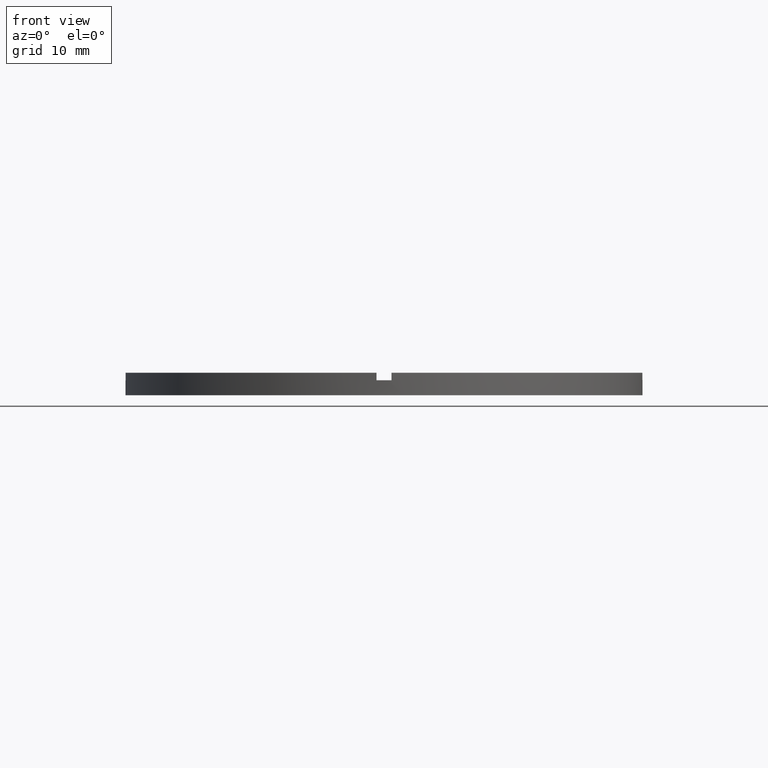
[diagram: clean part render]
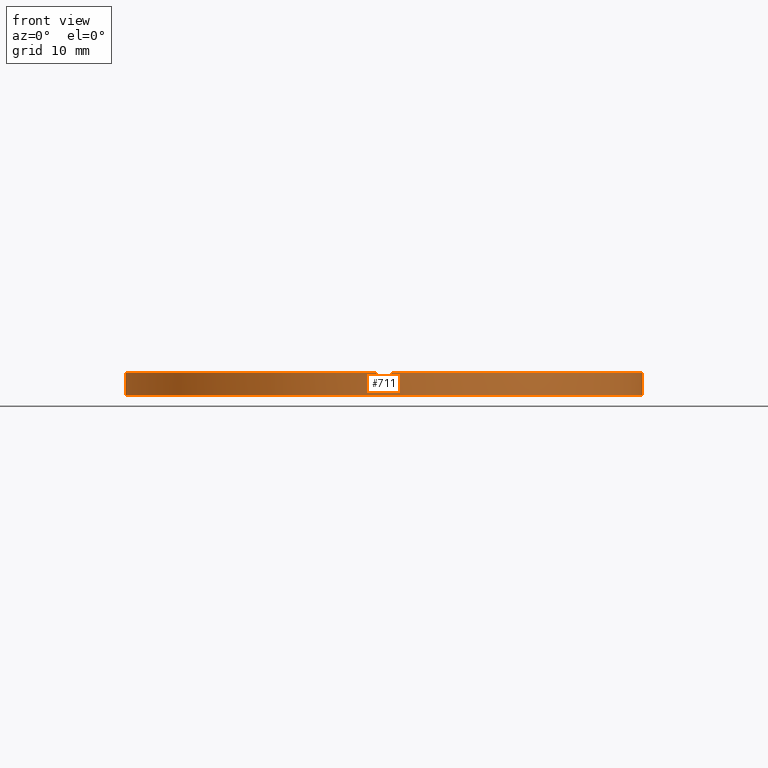
[diagram: same view with one face highlighted and labeled with its STEP entity id]
A machine part, front view. The second image highlights one B-rep face of the part: STEP entity #711.
In plain terms, the highlighted cylindrical surface (partial cylindrical patch) has radius 34.5 mm, axis along (-0, -0, -1).
Its self-contained STEP definition (entity closure, byte-faithful):
#5 = CARTESIAN_POINT ( 'NONE',  ( -1.000000000000160760, -34.48550420104075442, 3.000000000000000000 ) ) ;
#9 = LINE ( 'NONE', #189, #264 ) ;
#10 = DIRECTION ( 'NONE',  ( 0.000000000000000000, 0.000000000000000000, 1.000000000000000000 ) ) ;
#12 = AXIS2_PLACEMENT_3D ( 'NONE', #453, #564, #317 ) ;
#13 = CARTESIAN_POINT ( 'NONE',  ( -1.000000000000160760, -34.48550420104075442, 2.000000000000000000 ) ) ;
#19 = DIRECTION ( 'NONE',  ( -0.000000000000000000, -0.000000000000000000, -1.000000000000000000 ) ) ;
#26 = LINE ( 'NONE', #729, #410 ) ;
#29 = EDGE_CURVE ( 'NONE', #88, #430, #749, .T. ) ;
#31 = DIRECTION ( 'NONE',  ( 1.000000000000000000, 0.000000000000000000, 0.000000000000000000 ) ) ;
#56 = DIRECTION ( 'NONE',  ( 0.000000000000000000, 0.000000000000000000, 1.000000000000000000 ) ) ;
#60 = AXIS2_PLACEMENT_3D ( 'NONE', #764, #570, #222 ) ;
#79 = EDGE_CURVE ( 'NONE', #331, #628, #209, .T. ) ;
#83 = EDGE_CURVE ( 'NONE', #652, #756, #214, .T. ) ;
#88 = VERTEX_POINT ( 'NONE', #522 ) ;
#91 = ORIENTED_EDGE ( 'NONE', *, *, #563, .T. ) ;
#96 = ORIENTED_EDGE ( 'NONE', *, *, #445, .F. ) ;
#101 = DIRECTION ( 'NONE',  ( 0.000000000000000000, 0.000000000000000000, 1.000000000000000000 ) ) ;
#108 = ORIENTED_EDGE ( 'NONE', *, *, #330, .T. ) ;
#114 = VERTEX_POINT ( 'NONE', #457 ) ;
#131 = CARTESIAN_POINT ( 'NONE',  ( 34.49999999999999289, 4.225031457058367344E-15, 3.000000000000000000 ) ) ;
#141 = DIRECTION ( 'NONE',  ( -0.000000000000000000, -0.000000000000000000, -1.000000000000000000 ) ) ;
#145 = CYLINDRICAL_SURFACE ( 'NONE', #643, 34.49999999999999289 ) ;
#148 = EDGE_CURVE ( 'NONE', #377, #114, #224, .T. ) ;
#152 = ORIENTED_EDGE ( 'NONE', *, *, #79, .T. ) ;
#159 = CIRCLE ( 'NONE', #12, 34.49999999999999289 ) ;
#161 = VERTEX_POINT ( 'NONE', #772 ) ;
#171 = DIRECTION ( 'NONE',  ( -0.000000000000000000, 0.000000000000000000, 1.000000000000000000 ) ) ;
#174 = ORIENTED_EDGE ( 'NONE', *, *, #29, .T. ) ;
#175 = ORIENTED_EDGE ( 'NONE', *, *, #261, .T. ) ;
#188 = CARTESIAN_POINT ( 'NONE',  ( 34.48550420104075442, -1.000000000000158096, 2.000000000000000000 ) ) ;
#189 = CARTESIAN_POINT ( 'NONE',  ( -34.48550420104075442, -1.000000000000026645, 3.000000000000000000 ) ) ;
#199 = CARTESIAN_POINT ( 'NONE',  ( 0.000000000000000000, 0.000000000000000000, 3.000000000000000000 ) ) ;
#209 = LINE ( 'NONE', #5, #757 ) ;
#212 = CIRCLE ( 'NONE', #584, 34.49999999999999289 ) ;
#214 = CIRCLE ( 'NONE', #707, 34.49999999999999289 ) ;
#222 = DIRECTION ( 'NONE',  ( 1.000000000000000000, 0.000000000000000000, 0.000000000000000000 ) ) ;
#224 = CIRCLE ( 'NONE', #60, 34.49999999999999289 ) ;
#231 = EDGE_CURVE ( 'NONE', #594, #628, #212, .T. ) ;
#236 = CARTESIAN_POINT ( 'NONE',  ( 0.9999999999998393507, -34.48550420104076153, 2.000000000000000000 ) ) ;
#253 = VECTOR ( 'NONE', #294, 1000.000000000000000 ) ;
#261 = EDGE_CURVE ( 'NONE', #377, #88, #766, .T. ) ;
#264 = VECTOR ( 'NONE', #141, 1000.000000000000000 ) ;
#284 = DIRECTION ( 'NONE',  ( 0.000000000000000000, 0.000000000000000000, 1.000000000000000000 ) ) ;
#288 = VECTOR ( 'NONE', #10, 1000.000000000000000 ) ;
#294 = DIRECTION ( 'NONE',  ( -0.000000000000000000, -0.000000000000000000, -1.000000000000000000 ) ) ;
#299 = AXIS2_PLACEMENT_3D ( 'NONE', #561, #746, #31 ) ;
#301 = CARTESIAN_POINT ( 'NONE',  ( -34.48550420104075442, -1.000000000000026645, 3.000000000000000000 ) ) ;
#311 = DIRECTION ( 'NONE',  ( -0.000000000000000000, -0.000000000000000000, -1.000000000000000000 ) ) ;
#317 = DIRECTION ( 'NONE',  ( 1.000000000000000000, 0.000000000000000000, 0.000000000000000000 ) ) ;
#330 = EDGE_CURVE ( 'NONE', #594, #114, #9, .T. ) ;
#331 = VERTEX_POINT ( 'NONE', #13 ) ;
#347 = DIRECTION ( 'NONE',  ( 1.000000000000000000, 0.000000000000000000, 0.000000000000000000 ) ) ;
#359 = ORIENTED_EDGE ( 'NONE', *, *, #148, .F. ) ;
#362 = CARTESIAN_POINT ( 'NONE',  ( -34.49999999999999289, 0.000000000000000000, 2.000000000000000000 ) ) ;
#376 = VERTEX_POINT ( 'NONE', #236 ) ;
#377 = VERTEX_POINT ( 'NONE', #362 ) ;
#395 = EDGE_LOOP ( 'NONE', ( #471, #734, #91, #399, #755, #96, #152, #427, #108, #359, #175, #174 ) ) ;
#399 = ORIENTED_EDGE ( 'NONE', *, *, #768, .F. ) ;
#400 = AXIS2_PLACEMENT_3D ( 'NONE', #634, #171, #404 ) ;
#404 = DIRECTION ( 'NONE',  ( 1.000000000000000000, 0.000000000000000000, 0.000000000000000000 ) ) ;
#410 = VECTOR ( 'NONE', #311, 1000.000000000000000 ) ;
#417 = CARTESIAN_POINT ( 'NONE',  ( 0.000000000000000000, 0.000000000000000000, 2.000000000000000000 ) ) ;
#427 = ORIENTED_EDGE ( 'NONE', *, *, #231, .F. ) ;
#430 = VERTEX_POINT ( 'NONE', #740 ) ;
#445 = EDGE_CURVE ( 'NONE', #331, #376, #526, .T. ) ;
#453 = CARTESIAN_POINT ( 'NONE',  ( 0.000000000000000000, 0.000000000000000000, 3.000000000000000000 ) ) ;
#455 = DIRECTION ( 'NONE',  ( 1.000000000000000000, 0.000000000000000000, 0.000000000000000000 ) ) ;
#457 = CARTESIAN_POINT ( 'NONE',  ( -34.48550420104075442, -1.000000000000026645, 2.000000000000000000 ) ) ;
#461 = CARTESIAN_POINT ( 'NONE',  ( -34.49999999999999289, 0.000000000000000000, 3.000000000000000000 ) ) ;
#471 = ORIENTED_EDGE ( 'NONE', *, *, #504, .F. ) ;
#500 = VECTOR ( 'NONE', #767, 1000.000000000000000 ) ;
#504 = EDGE_CURVE ( 'NONE', #756, #430, #774, .T. ) ;
#522 = CARTESIAN_POINT ( 'NONE',  ( -34.49999999999999289, 0.000000000000000000, 0.000000000000000000 ) ) ;
#526 = CIRCLE ( 'NONE', #400, 34.49999999999999289 ) ;
#545 = LINE ( 'NONE', #558, #288 ) ;
#558 = CARTESIAN_POINT ( 'NONE',  ( 34.48550420104075442, -1.000000000000158096, 3.000000000000000000 ) ) ;
#561 = CARTESIAN_POINT ( 'NONE',  ( 0.000000000000000000, 0.000000000000000000, 0.000000000000000000 ) ) ;
#563 = EDGE_CURVE ( 'NONE', #652, #641, #545, .T. ) ;
#564 = DIRECTION ( 'NONE',  ( 0.000000000000000000, 0.000000000000000000, 1.000000000000000000 ) ) ;
#570 = DIRECTION ( 'NONE',  ( 0.000000000000000000, 0.000000000000000000, 1.000000000000000000 ) ) ;
#584 = AXIS2_PLACEMENT_3D ( 'NONE', #706, #101, #347 ) ;
#594 = VERTEX_POINT ( 'NONE', #301 ) ;
#628 = VERTEX_POINT ( 'NONE', #737 ) ;
#633 = CARTESIAN_POINT ( 'NONE',  ( 34.49999999999999289, 4.225031457058367344E-15, 2.000000000000000000 ) ) ;
#634 = CARTESIAN_POINT ( 'NONE',  ( 0.000000000000000000, 0.000000000000000000, 2.000000000000000000 ) ) ;
#641 = VERTEX_POINT ( 'NONE', #781 ) ;
#643 = AXIS2_PLACEMENT_3D ( 'NONE', #199, #19, #694 ) ;
#652 = VERTEX_POINT ( 'NONE', #188 ) ;
#668 = FACE_OUTER_BOUND ( 'NONE', #395, .T. ) ;
#694 = DIRECTION ( 'NONE',  ( -1.000000000000000000, 0.000000000000000000, 0.000000000000000000 ) ) ;
#703 = EDGE_CURVE ( 'NONE', #161, #376, #26, .T. ) ;
#706 = CARTESIAN_POINT ( 'NONE',  ( 0.000000000000000000, 0.000000000000000000, 3.000000000000000000 ) ) ;
#707 = AXIS2_PLACEMENT_3D ( 'NONE', #417, #284, #455 ) ;
#711 = ADVANCED_FACE ( 'NONE', ( #668 ), #145, .T. ) ;
#729 = CARTESIAN_POINT ( 'NONE',  ( 0.9999999999998393507, -34.48550420104076153, 3.000000000000000000 ) ) ;
#734 = ORIENTED_EDGE ( 'NONE', *, *, #83, .F. ) ;
#737 = CARTESIAN_POINT ( 'NONE',  ( -1.000000000000160760, -34.48550420104075442, 3.000000000000000000 ) ) ;
#740 = CARTESIAN_POINT ( 'NONE',  ( 34.49999999999999289, 4.225031457058367344E-15, 0.000000000000000000 ) ) ;
#746 = DIRECTION ( 'NONE',  ( 0.000000000000000000, 0.000000000000000000, 1.000000000000000000 ) ) ;
#749 = CIRCLE ( 'NONE', #299, 34.49999999999999289 ) ;
#755 = ORIENTED_EDGE ( 'NONE', *, *, #703, .T. ) ;
#756 = VERTEX_POINT ( 'NONE', #633 ) ;
#757 = VECTOR ( 'NONE', #56, 1000.000000000000000 ) ;
#764 = CARTESIAN_POINT ( 'NONE',  ( 0.000000000000000000, 0.000000000000000000, 2.000000000000000000 ) ) ;
#766 = LINE ( 'NONE', #461, #500 ) ;
#767 = DIRECTION ( 'NONE',  ( -0.000000000000000000, -0.000000000000000000, -1.000000000000000000 ) ) ;
#768 = EDGE_CURVE ( 'NONE', #161, #641, #159, .T. ) ;
#772 = CARTESIAN_POINT ( 'NONE',  ( 0.9999999999998393507, -34.48550420104076153, 3.000000000000000000 ) ) ;
#774 = LINE ( 'NONE', #131, #253 ) ;
#781 = CARTESIAN_POINT ( 'NONE',  ( 34.48550420104075442, -1.000000000000158096, 3.000000000000000000 ) ) ;